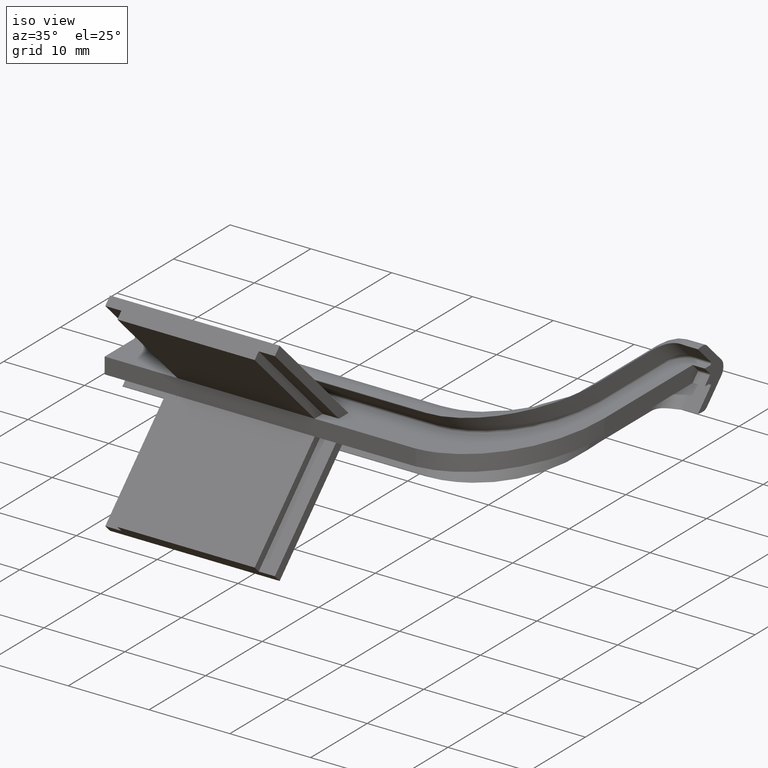
[diagram: clean part render]
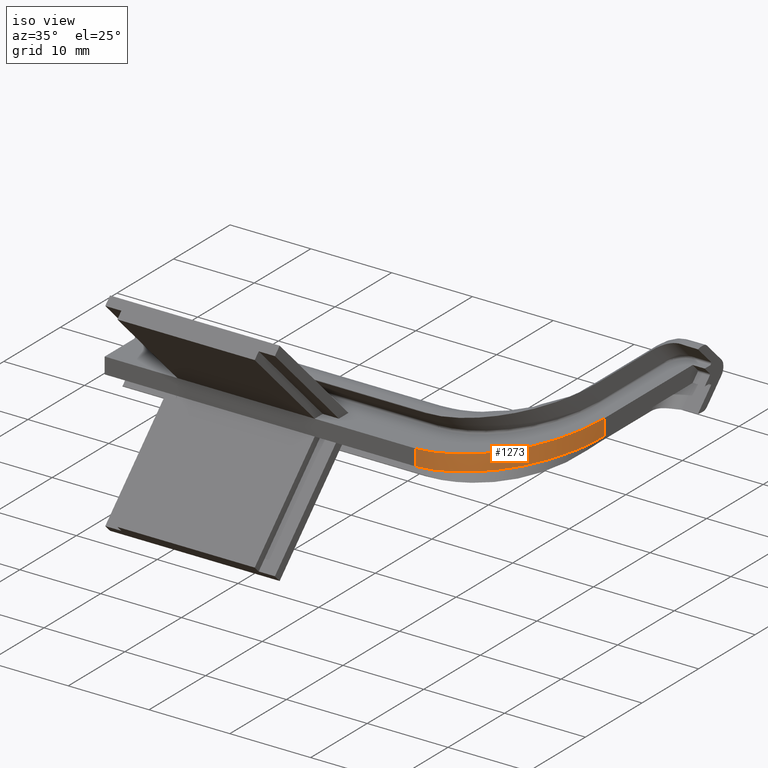
[diagram: same view with one face highlighted and labeled with its STEP entity id]
A machine part, iso view. The second image highlights one B-rep face of the part: STEP entity #1273.
In plain terms, the highlighted face is a freeform B-spline surface patch.
Its self-contained STEP definition (entity closure, byte-faithful):
#15=(
BOUNDED_SURFACE()
B_SPLINE_SURFACE(1,2,((#2558,#2559,#2560),(#2561,#2562,#2563)),
 .UNSPECIFIED.,.F.,.F.,.F.)
B_SPLINE_SURFACE_WITH_KNOTS((2,2),(3,3),(-0.058925565098879,0.058925565098879),
(0.041678732422556,1.5707963267949),.UNSPECIFIED.)
GEOMETRIC_REPRESENTATION_ITEM()
RATIONAL_B_SPLINE_SURFACE(((1.,0.721687836487023,1.),(1.,0.721687836487023,
1.)))
REPRESENTATION_ITEM('')
SURFACE()
);
#65=ELLIPSE('',#1305,16.9705627484771,12.);
#66=ELLIPSE('',#1326,16.9705627484771,12.);
#206=FACE_OUTER_BOUND('',#273,.T.);
#273=EDGE_LOOP('',(#1167,#1168,#1169,#1170));
#284=LINE('',#1738,#399);
#388=LINE('',#2557,#503);
#399=VECTOR('',#1417,10.);
#503=VECTOR('',#1707,10.);
#548=VERTEX_POINT('',#1735);
#549=VERTEX_POINT('',#1737);
#559=VERTEX_POINT('',#1759);
#594=VERTEX_POINT('',#1847);
#659=EDGE_CURVE('',#548,#549,#284,.T.);
#671=EDGE_CURVE('',#548,#559,#65,.T.);
#715=EDGE_CURVE('',#594,#549,#66,.T.);
#820=EDGE_CURVE('',#559,#594,#388,.T.);
#1167=ORIENTED_EDGE('',*,*,#715,.T.);
#1168=ORIENTED_EDGE('',*,*,#659,.F.);
#1169=ORIENTED_EDGE('',*,*,#671,.T.);
#1170=ORIENTED_EDGE('',*,*,#820,.T.);
#1273=ADVANCED_FACE('',(#206),#15,.F.);
#1305=AXIS2_PLACEMENT_3D('',#1761,#1433,#1434);
#1326=AXIS2_PLACEMENT_3D('',#1848,#1506,#1507);
#1417=DIRECTION('',(0.,0.,1.));
#1433=DIRECTION('center_axis',(0.,0.,1.));
#1434=DIRECTION('ref_axis',(8.50466748453712E-15,-1.,0.));
#1506=DIRECTION('center_axis',(0.,0.,-1.));
#1507=DIRECTION('ref_axis',(8.50466748453712E-15,-1.,0.));
#1707=DIRECTION('',(0.,0.,1.));
#1735=CARTESIAN_POINT('',(54.9999999999999,3.7559024481021E-14,-1.));
#1737=CARTESIAN_POINT('',(54.9999999999999,3.7559024481021E-14,1.));
#1738=CARTESIAN_POINT('',(54.9999999999999,3.7559024481021E-14,0.));
#1759=CARTESIAN_POINT('',(66.5,16.9558249578134,-1.));
#1761=CARTESIAN_POINT('Origin',(54.5,16.9558249578132,-1.));
#1847=CARTESIAN_POINT('',(66.5,16.9558249578134,1.));
#1848=CARTESIAN_POINT('Origin',(54.5,16.9558249578132,1.));
#2557=CARTESIAN_POINT('',(66.5,16.9558249578134,0.));
#2558=CARTESIAN_POINT('Ctrl Pts',(54.9999999999999,3.82066545787222E-14,
-1.));
#2559=CARTESIAN_POINT('Ctrl Pts',(66.5000000000002,0.67823299831228,-1.));
#2560=CARTESIAN_POINT('Ctrl Pts',(66.5,16.9558249578133,-1.));
#2561=CARTESIAN_POINT('Ctrl Pts',(54.9999999999999,3.82066545787222E-14,
1.));
#2562=CARTESIAN_POINT('Ctrl Pts',(66.5000000000002,0.67823299831228,1.));
#2563=CARTESIAN_POINT('Ctrl Pts',(66.5,16.9558249578133,1.));